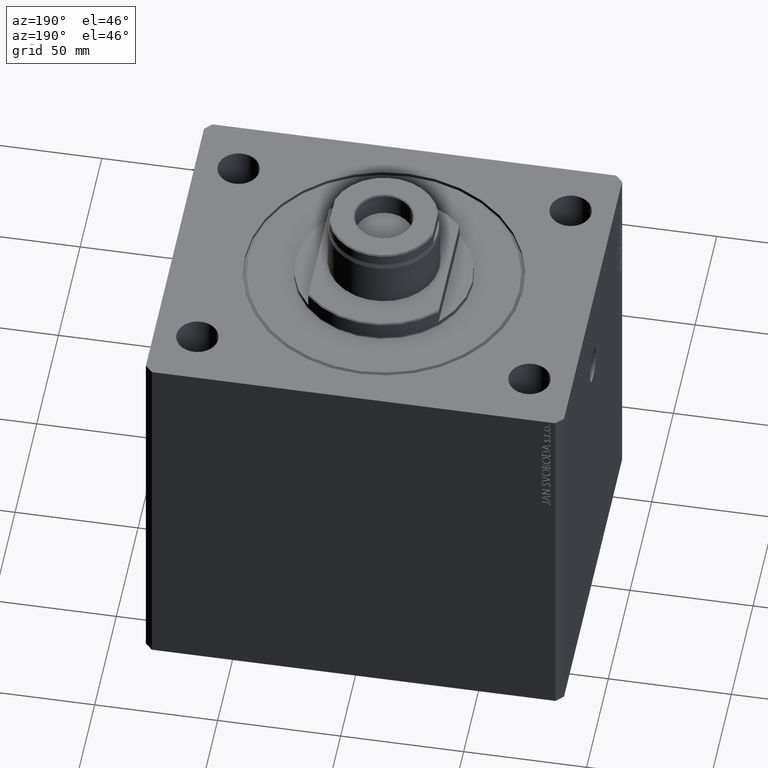
[diagram: clean part render]
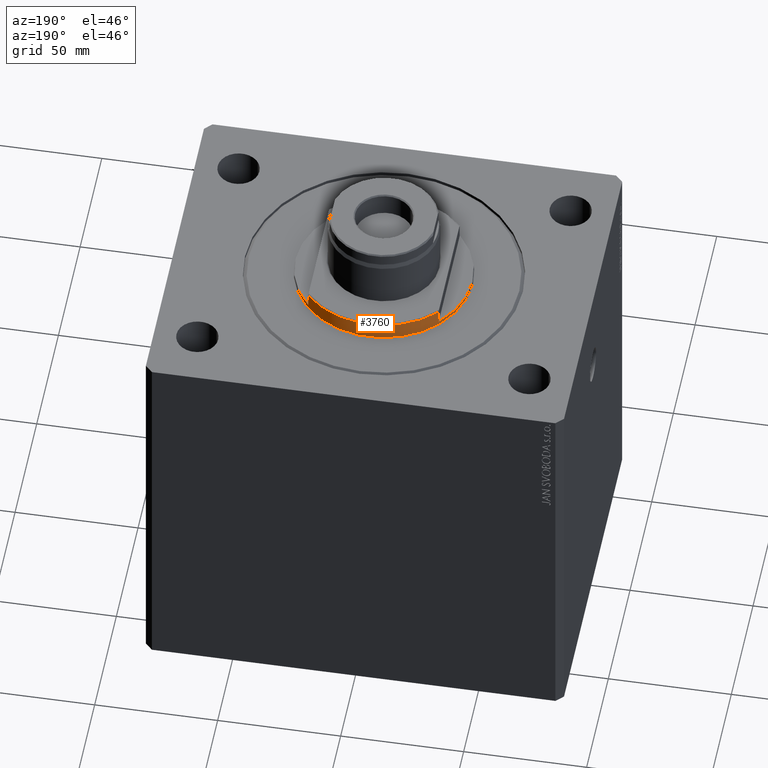
[diagram: same view with one face highlighted and labeled with its STEP entity id]
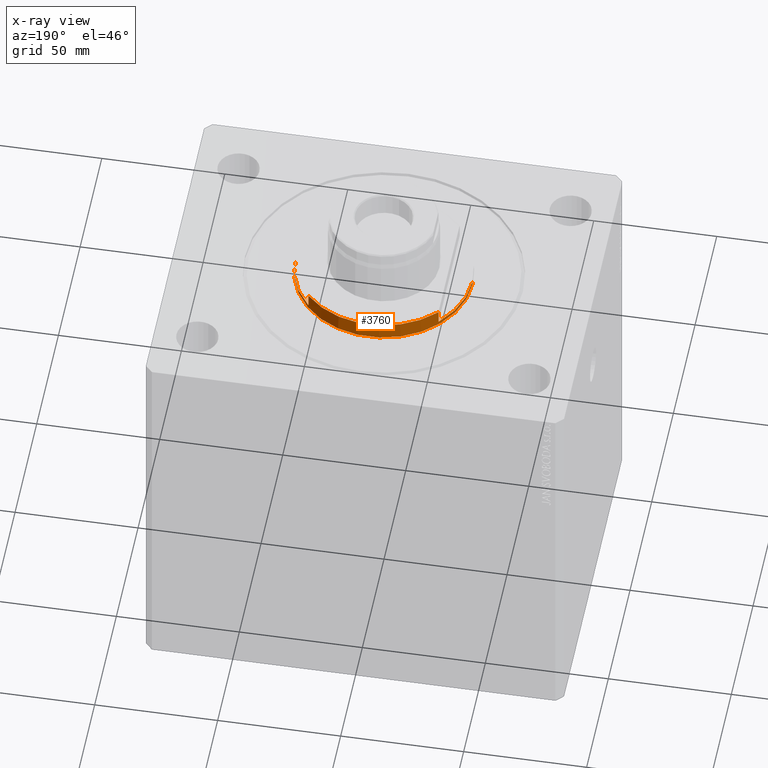
[diagram: x-ray of the same camera — body ghosted, the highlighted face saturated]
A machine part, auxiliary view. The second image highlights one B-rep face of the part: STEP entity #3760.
The next image is the same camera in x-ray: the body ghosted, the highlighted face saturated — about 0% of this face is hidden behind the body in this view.
In plain terms, the highlighted cylindrical surface (partial cylindrical patch) has radius 36 mm, axis along (0, 0, -1).
Its self-contained STEP definition (entity closure, byte-faithful):
#846 = CARTESIAN_POINT ( 'NONE',  ( -36.00000000000000000, 4.408728476930470856E-15, -8.000000000000000000 ) ) ;
#943 = DIRECTION ( 'NONE',  ( -0.000000000000000000, -0.000000000000000000, 1.000000000000000000 ) ) ;
#2194 = AXIS2_PLACEMENT_3D ( 'NONE', #42042, #5025, #21740 ) ;
#3420 = LINE ( 'NONE', #16584, #35763 ) ;
#3760 = ADVANCED_FACE ( 'NONE', ( #5474 ), #35567, .T. ) ;
#4795 = DIRECTION ( 'NONE',  ( -0.000000000000000000, -0.000000000000000000, -1.000000000000000000 ) ) ;
#5025 = DIRECTION ( 'NONE',  ( -0.000000000000000000, -0.000000000000000000, 1.000000000000000000 ) ) ;
#5474 = FACE_OUTER_BOUND ( 'NONE', #29281, .T. ) ;
#5524 = DIRECTION ( 'NONE',  ( 0.000000000000000000, 0.000000000000000000, -1.000000000000000000 ) ) ;
#6179 = VERTEX_POINT ( 'NONE', #15513 ) ;
#6293 = CARTESIAN_POINT ( 'NONE',  ( -26.50000000000000000, 24.36698586202241046, -7.499999999999995559 ) ) ;
#6591 = CARTESIAN_POINT ( 'NONE',  ( -36.00000000000000000, 4.408728476930470856E-15, -0.5000000000000004441 ) ) ;
#6843 = ORIENTED_EDGE ( 'NONE', *, *, #7527, .F. ) ;
#7449 = LINE ( 'NONE', #21466, #12327 ) ;
#7527 = EDGE_CURVE ( 'NONE', #33165, #40124, #3420, .T. ) ;
#8813 = ORIENTED_EDGE ( 'NONE', *, *, #8889, .T. ) ;
#8889 = EDGE_CURVE ( 'NONE', #36088, #6179, #7449, .T. ) ;
#9723 = CIRCLE ( 'NONE', #26079, 36.00000000000000000 ) ;
#9836 = LINE ( 'NONE', #846, #36163 ) ;
#9898 = DIRECTION ( 'NONE',  ( -0.000000000000000000, -0.000000000000000000, 1.000000000000000000 ) ) ;
#11552 = DIRECTION ( 'NONE',  ( -1.000000000000000000, 0.000000000000000000, 0.000000000000000000 ) ) ;
#11649 = LINE ( 'NONE', #31492, #33184 ) ;
#11959 = DIRECTION ( 'NONE',  ( 0.000000000000000000, 0.000000000000000000, 1.000000000000000000 ) ) ;
#12327 = VECTOR ( 'NONE', #35075, 1000.000000000000000 ) ;
#12381 = ORIENTED_EDGE ( 'NONE', *, *, #40037, .T. ) ;
#13695 = VERTEX_POINT ( 'NONE', #6591 ) ;
#14308 = EDGE_CURVE ( 'NONE', #33165, #36088, #26661, .T. ) ;
#14450 = DIRECTION ( 'NONE',  ( -0.000000000000000000, -0.000000000000000000, 1.000000000000000000 ) ) ;
#15513 = CARTESIAN_POINT ( 'NONE',  ( -26.50000000000000000, 24.36698586202240691, -2.000000000000000000 ) ) ;
#15919 = ORIENTED_EDGE ( 'NONE', *, *, #34005, .T. ) ;
#16584 = CARTESIAN_POINT ( 'NONE',  ( 26.50000000000000000, 24.36698586202240691, -8.000000000000000000 ) ) ;
#20788 = ORIENTED_EDGE ( 'NONE', *, *, #29371, .F. ) ;
#21402 = DIRECTION ( 'NONE',  ( -1.000000000000000000, 0.000000000000000000, 0.000000000000000000 ) ) ;
#21466 = CARTESIAN_POINT ( 'NONE',  ( -26.50000000000000000, 24.36698586202240691, -8.000000000000000000 ) ) ;
#21564 = CARTESIAN_POINT ( 'NONE',  ( 0.000000000000000000, 0.000000000000000000, -2.000000000000000000 ) ) ;
#21646 = ORIENTED_EDGE ( 'NONE', *, *, #25293, .F. ) ;
#21740 = DIRECTION ( 'NONE',  ( 1.000000000000000000, 0.000000000000000000, 0.000000000000000000 ) ) ;
#21748 = DIRECTION ( 'NONE',  ( -1.000000000000000000, 0.000000000000000000, 0.000000000000000000 ) ) ;
#25064 = CARTESIAN_POINT ( 'NONE',  ( 36.00000000000000000, 0.000000000000000000, -2.000000000000000000 ) ) ;
#25286 = AXIS2_PLACEMENT_3D ( 'NONE', #39406, #5524, #21402 ) ;
#25293 = EDGE_CURVE ( 'NONE', #40124, #42947, #32421, .T. ) ;
#25303 = CARTESIAN_POINT ( 'NONE',  ( -36.00000000000000000, 4.408728476930470856E-15, -2.000000000000000000 ) ) ;
#25669 = VERTEX_POINT ( 'NONE', #29759 ) ;
#26079 = AXIS2_PLACEMENT_3D ( 'NONE', #21564, #41207, #11552 ) ;
#26661 = CIRCLE ( 'NONE', #43053, 36.00000000000000000 ) ;
#27032 = ORIENTED_EDGE ( 'NONE', *, *, #14308, .T. ) ;
#27657 = AXIS2_PLACEMENT_3D ( 'NONE', #42251, #4795, #28867 ) ;
#27757 = CIRCLE ( 'NONE', #27657, 36.00000000000000000 ) ;
#28013 = EDGE_CURVE ( 'NONE', #42947, #25669, #11649, .T. ) ;
#28397 = VERTEX_POINT ( 'NONE', #25303 ) ;
#28867 = DIRECTION ( 'NONE',  ( 1.000000000000000000, 0.000000000000000000, 0.000000000000000000 ) ) ;
#29281 = EDGE_LOOP ( 'NONE', ( #20788, #15919, #12381, #32212, #21646, #6843, #27032, #8813 ) ) ;
#29371 = EDGE_CURVE ( 'NONE', #28397, #6179, #9723, .T. ) ;
#29759 = CARTESIAN_POINT ( 'NONE',  ( 36.00000000000000000, 0.000000000000000000, -0.5000000000000004441 ) ) ;
#31492 = CARTESIAN_POINT ( 'NONE',  ( 36.00000000000000000, 0.000000000000000000, -8.000000000000000000 ) ) ;
#32212 = ORIENTED_EDGE ( 'NONE', *, *, #28013, .F. ) ;
#32421 = CIRCLE ( 'NONE', #25286, 36.00000000000000000 ) ;
#33165 = VERTEX_POINT ( 'NONE', #42045 ) ;
#33184 = VECTOR ( 'NONE', #943, 1000.000000000000000 ) ;
#34005 = EDGE_CURVE ( 'NONE', #28397, #13695, #9836, .T. ) ;
#35075 = DIRECTION ( 'NONE',  ( -0.000000000000000000, -0.000000000000000000, 1.000000000000000000 ) ) ;
#35567 = CYLINDRICAL_SURFACE ( 'NONE', #2194, 36.00000000000000000 ) ;
#35763 = VECTOR ( 'NONE', #9898, 1000.000000000000000 ) ;
#35794 = CARTESIAN_POINT ( 'NONE',  ( 0.000000000000000000, 0.000000000000000000, -7.499999999999992895 ) ) ;
#36088 = VERTEX_POINT ( 'NONE', #6293 ) ;
#36163 = VECTOR ( 'NONE', #14450, 1000.000000000000000 ) ;
#39406 = CARTESIAN_POINT ( 'NONE',  ( 0.000000000000000000, 0.000000000000000000, -2.000000000000000000 ) ) ;
#40037 = EDGE_CURVE ( 'NONE', #13695, #25669, #27757, .T. ) ;
#40124 = VERTEX_POINT ( 'NONE', #42685 ) ;
#41207 = DIRECTION ( 'NONE',  ( 0.000000000000000000, 0.000000000000000000, -1.000000000000000000 ) ) ;
#42042 = CARTESIAN_POINT ( 'NONE',  ( 0.000000000000000000, 0.000000000000000000, -8.000000000000000000 ) ) ;
#42045 = CARTESIAN_POINT ( 'NONE',  ( 26.50000000000000000, 24.36698586202241046, -7.499999999999995559 ) ) ;
#42251 = CARTESIAN_POINT ( 'NONE',  ( 0.000000000000000000, 0.000000000000000000, -0.5000000000000004441 ) ) ;
#42685 = CARTESIAN_POINT ( 'NONE',  ( 26.50000000000000000, 24.36698586202240691, -2.000000000000000000 ) ) ;
#42947 = VERTEX_POINT ( 'NONE', #25064 ) ;
#43053 = AXIS2_PLACEMENT_3D ( 'NONE', #35794, #11959, #21748 ) ;